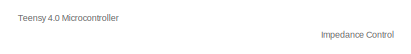
[diagram: root canvas - part 1/3, top left region]
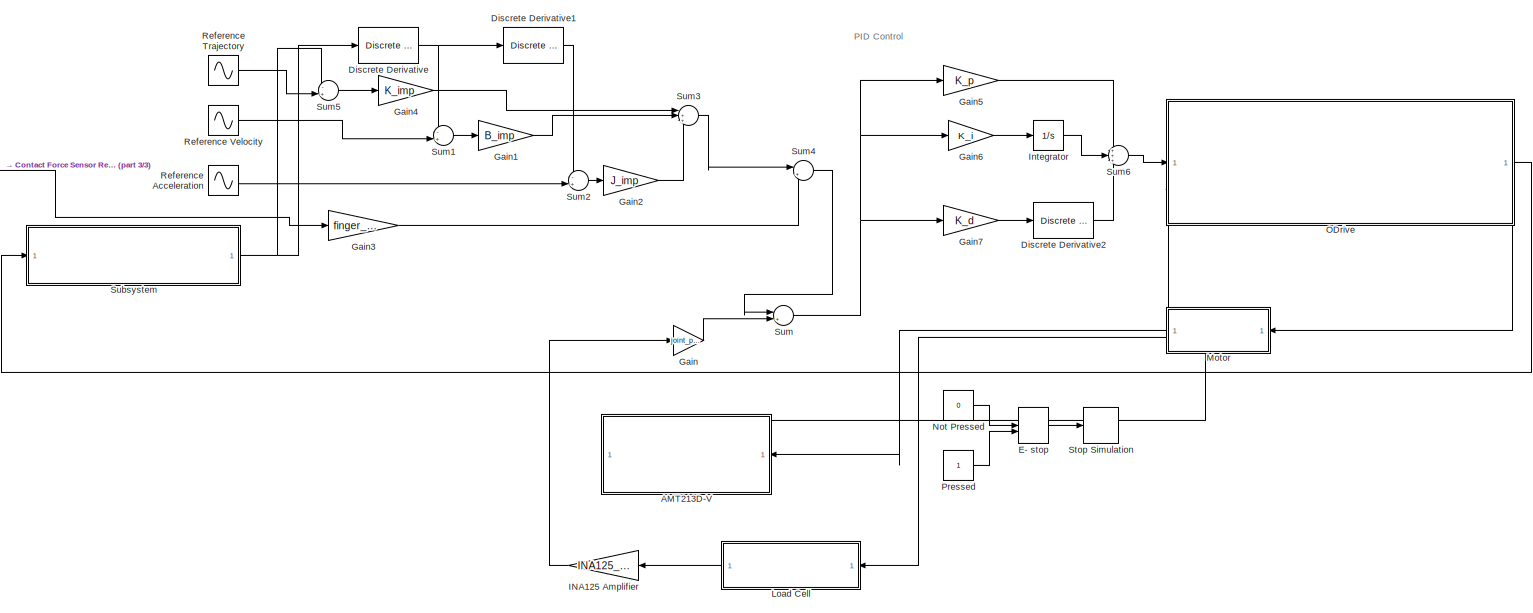
[diagram: root canvas - part 2/3, most of the canvas]
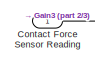
[diagram: root canvas - part 3/3, middle left region]
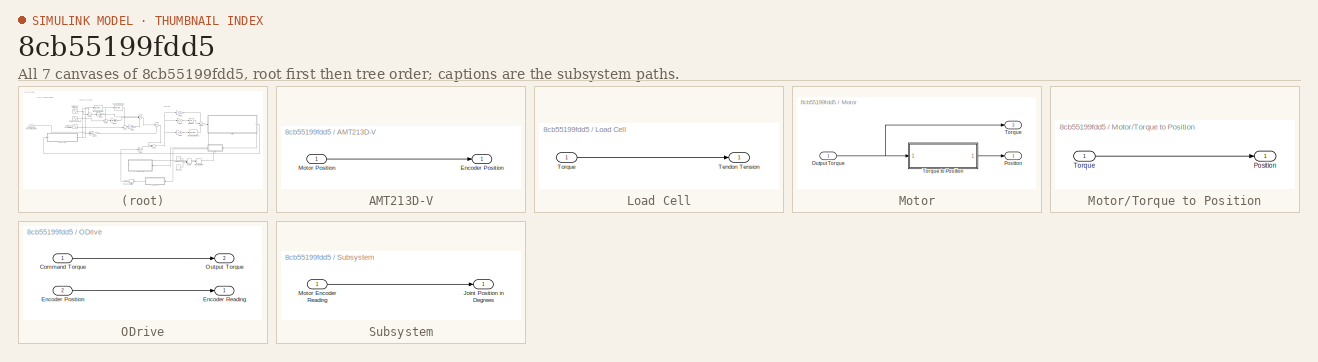
[diagram: thumbnail index - all 7 canvases of the model, root first then tree order]
MODEL slx_8cb55199fdd5
KIND model
CONFIG AbsTol = auto
CONFIG EnableMultiTasking = off
CONFIG FixedStep = auto
CONFIG MaxStep = auto
CONFIG MinStep = auto
CONFIG PreLoadFcn = load 'Control Block Diagram'\contact_force.mat
CONFIG RelTol = 1e-3
CONFIG SampleTimeConstraint = Unconstrained
CONFIG SolverName = VariableStepAuto
CONFIG StartTime = 0.0
CONFIG StopTime = 10.0
WORKSPACE source: mxarray member
WORKSPACE B_imp = 1
WORKSPACE INA125_gain = 604
WORKSPACE J_imp = 1
WORKSPACE K_d = 1
WORKSPACE K_f = 1
WORKSPACE K_i = 1
WORKSPACE K_imp = 1
WORKSPACE K_p = 1
WORKSPACE finger_length = 0.105
WORKSPACE full_ROM = 90
WORKSPACE joint_pulley_diam = 0.1
WORKSPACE sine_freq_Hz = 2
BLOCK [ManualSwitch]  E- stop
BLOCK [SubSystem] AMT213D-V
  PortSchema = {"entries":[{"content":{"sides":[{"content":{"connectorIds":["In1"]},"type":"ConnectorPlacement.EquallySpacedRectSide","uuid":"88afd67f-3209-48d2-80be-27a9c6027e98"},{"content":{"side":"RIGHT"},"type":"ConnectorPlacement.EquallySpacedRectSide","uuid":"6bd83a64-80e2-4e6b-a2e1-60e2a1b1e7d1"},{"content":{"connectorIds":["Out1"],"side":"TOP"},"type":"ConnectorPlacement.EquallySpacedRectSide","uuid":"c...<+222ch>
BLOCK [Outport] AMT213D-V/Encoder Position
BLOCK [Inport] AMT213D-V/Motor Position
BLOCK [Inport] Contact Force Sensor Reading 
BLOCK [Reference] Discrete Derivative  REF=simulink/Discrete/Discrete Derivative
  SourceBlock = simulink/Discrete/Discrete Derivative
  SourceType = Discrete Derivative
BLOCK [Reference] Discrete Derivative1  REF=simulink/Discrete/Discrete Derivative
  SourceBlock = simulink/Discrete/Discrete Derivative
  SourceType = Discrete Derivative
BLOCK [Reference] Discrete Derivative2  REF=simulink/Discrete/Discrete Derivative
  SourceBlock = simulink/Discrete/Discrete Derivative
  SourceType = Discrete Derivative
BLOCK [Gain] Gain
  Gain = joint_pulley_diam
BLOCK [Gain] Gain1
  Gain = B_imp
BLOCK [Gain] Gain2
  Gain = J_imp
BLOCK [Gain] Gain3
  Gain = finger_length
BLOCK [Gain] Gain4
  Gain = K_imp
BLOCK [Gain] Gain5
  Gain = K_p
BLOCK [Gain] Gain6
  Gain = K_i
BLOCK [Gain] Gain7
  Gain = K_d
BLOCK [Gain] INA125 Amplifier
  Gain = INA125_gain
BLOCK [Integrator] Integrator
BLOCK [SubSystem] Load Cell
BLOCK [Outport] Load Cell/Tendon Tension
BLOCK [Inport] Load Cell/Torque
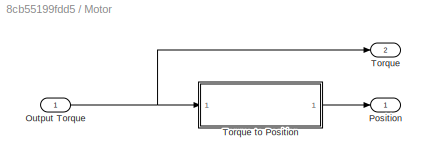
BLOCK [SubSystem] Motor
BLOCK [Inport] Motor/Output Torque 
BLOCK [Outport] Motor/Position 
BLOCK [Outport] Motor/Torque
  Port = 2
BLOCK [SubSystem] Motor/Torque to Position
BLOCK [Outport] Motor/Torque to Position/Position
BLOCK [Inport] Motor/Torque to Position/Torque 
BLOCK [Constant] Not Pressed
  Value = 0
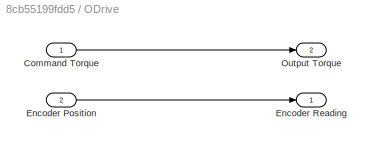
BLOCK [SubSystem] ODrive
  PortSchema = {"entries":[{"content":{"sides":[{"content":{"connectorIds":["In1"]},"type":"ConnectorPlacement.EquallySpacedRectSide","uuid":"c97f3b25-cb08-4b77-804d-5691f1a52caa"},{"content":{"connectorIds":["Out1"],"side":"RIGHT"},"type":"ConnectorPlacement.EquallySpacedRectSide","uuid":"fc8ddf87-a458-4f73-a642-c7dd3d8cebff"},{"content":{"side":"TOP"},"type":"ConnectorPlacement.EquallySpacedRectSide","uuid":"b...<+378ch>
BLOCK [Inport] ODrive/Command Torque
BLOCK [Inport] ODrive/Encoder Position
  Port = 2
BLOCK [Outport] ODrive/Encoder Reading
BLOCK [Outport] ODrive/Output Torque 
  Port = 2
BLOCK [Constant] Pressed
BLOCK [Sin] Reference Acceleration
  Amplitude = -0.75*full_ROM*(sine_freq_Hz*2*pi)^2
  Frequency = sine_freq_Hz*2*pi
  SampleTime = 0
BLOCK [Sin] Reference Trajectory
  Amplitude = 0.75*full_ROM
  Frequency = sine_freq_Hz*2*pi
  SampleTime = 0
BLOCK [Sin] Reference Velocity
  Amplitude = 0.75*full_ROM*sine_freq_Hz*2*pi
  Frequency = sine_freq_Hz*2*pi
  Phase = pi/2
  SampleTime = 0
BLOCK [Stop] Stop Simulation
BLOCK [SubSystem] Subsystem
BLOCK [Outport] Subsystem/Joint Position in Degrees
BLOCK [Inport] Subsystem/Motor Encoder Reading
BLOCK [Sum] Sum
  Inputs = |+-
BLOCK [Sum] Sum1
  Inputs = -+|
BLOCK [Sum] Sum2
  Inputs = -+|
BLOCK [Sum] Sum3
  Inputs = |+++
BLOCK [Sum] Sum4
  Inputs = |++
BLOCK [Sum] Sum5
  Inputs = -+|
BLOCK [Sum] Sum6
  Inputs = +++
ANNOTATION (root): Impedance Control
ANNOTATION (root): PID Control
ANNOTATION (root): Teensy 4.0 Microcontroller
LINE  E- stop:1 -> Stop Simulation:1
LINE AMT213D-V/Motor Position:1 -> AMT213D-V/Encoder Position:1
LINE AMT213D-V:1 -> ODrive:2
LINE Contact Force Sensor Reading :1 -> Gain3:1
LINE Discrete Derivative1:1 -> Sum2:1
LINE Discrete Derivative2:1 -> Sum6:3
NET Discrete Derivative:1 -> Discrete Derivative1:1, Sum1:1
LINE Gain1:1 -> Sum3:2
LINE Gain2:1 -> Sum3:3
LINE Gain3:1 -> Sum4:2
LINE Gain4:1 -> Sum3:1
LINE Gain5:1 -> Sum6:1
LINE Gain6:1 -> Integrator:1
LINE Gain7:1 -> Discrete Derivative2:1
LINE Gain:1 -> Sum:2
LINE INA125 Amplifier:1 -> Gain:1
LINE Integrator:1 -> Sum6:2
LINE Load Cell/Torque:1 -> Load Cell/Tendon Tension:1
LINE Load Cell:1 -> INA125 Amplifier:1
NET Motor/Output Torque :1 -> Motor/Torque to Position:1, Motor/Torque:1
LINE Motor/Torque to Position/Torque :1 -> Motor/Torque to Position/Position:1
LINE Motor/Torque to Position:1 -> Motor/Position :1
LINE Motor:1 -> AMT213D-V:1
LINE Motor:2 -> Load Cell:1
LINE Not Pressed:1 ->  E- stop:1
LINE ODrive/Command Torque:1 -> ODrive/Output Torque :1
LINE ODrive/Encoder Position:1 -> ODrive/Encoder Reading:1
LINE ODrive:1 -> Subsystem:1
LINE ODrive:2 -> Motor:1
LINE Pressed:1 ->  E- stop:2
LINE Reference Acceleration:1 -> Sum2:2
LINE Reference Trajectory:1 -> Sum5:2
LINE Reference Velocity:1 -> Sum1:2
LINE Subsystem/Motor Encoder Reading:1 -> Subsystem/Joint Position in Degrees:1
NET Subsystem:1 -> Discrete Derivative:1, Sum5:1
LINE Sum1:1 -> Gain1:1
LINE Sum2:1 -> Gain2:1
LINE Sum3:1 -> Sum4:1
LINE Sum4:1 -> Sum:1
LINE Sum5:1 -> Gain4:1
LINE Sum6:1 -> ODrive:1
NET Sum:1 -> Gain5:1, Gain6:1, Gain7:1
note: NET lines group one-source signal fan-out (src -> all destinations, sorted); 1:1 wires keep LINE
